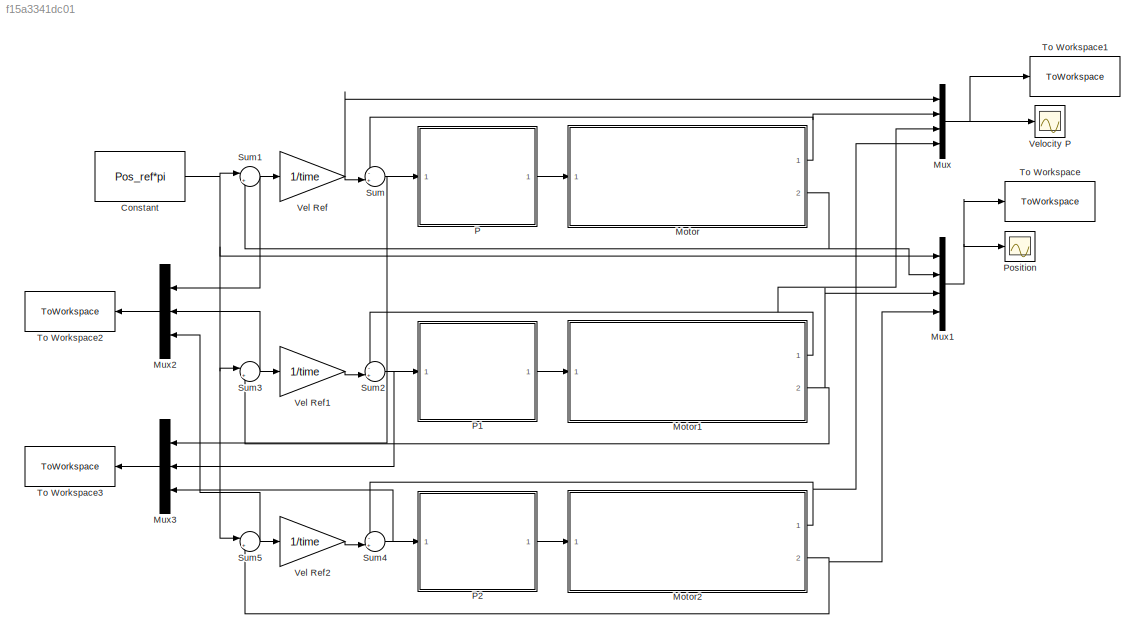
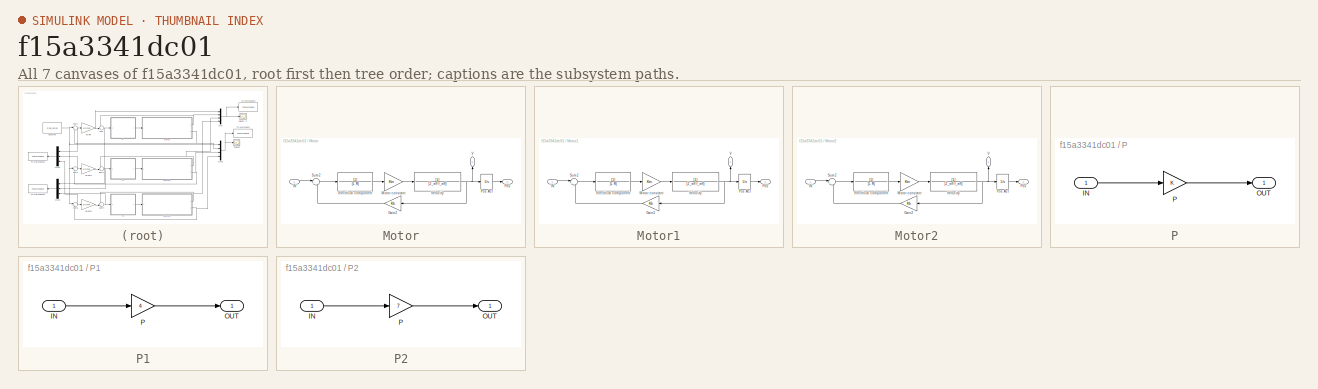
[diagram: thumbnail index - all 7 canvases of the model, root first then tree order]
MODEL slx_f15a3341dc01
KIND model
CONFIG AbsTol = auto
CONFIG EnableMultiTasking = off
CONFIG FixedStep = auto
CONFIG MaxStep = auto
CONFIG MinStep = auto
CONFIG RelTol = 1e-3
CONFIG SampleTimeConstraint = Unconstrained
CONFIG SolverName = VariableStepAuto
CONFIG StartTime = 0.0
CONFIG StopTime = 500
BLOCK [Constant] Constant
  Value = Pos_ref*pi
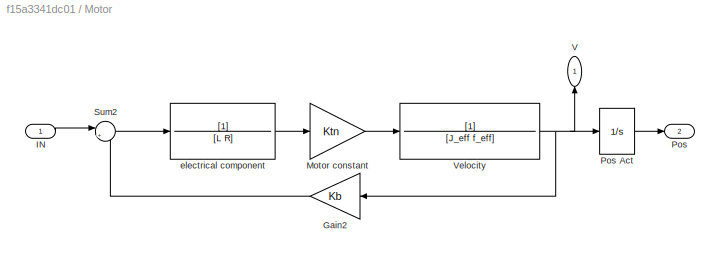
BLOCK [SubSystem] Motor
  Ports = [1, 2]
BLOCK [Gain] Motor/Gain2
  Gain = Kb
BLOCK [Inport] Motor/IN
  IconDisplay = Signal name
BLOCK [Gain] Motor/Motor constant
  Gain = Ktn
BLOCK [Outport] Motor/Pos
  IconDisplay = Port number and signal name
  Port = 2
BLOCK [Integrator] Motor/Pos Act
  Ports = [1, 1]
BLOCK [Sum] Motor/Sum2
  Inputs = |+-
  Ports = [2, 1]
BLOCK [Outport] Motor/V
  IconDisplay = Port number and signal name
  NameLocation = right
BLOCK [TransferFcn] Motor/Velocity
  Denominator = [J_eff f_eff]
BLOCK [TransferFcn] Motor/electrical component
  Denominator = [L R]
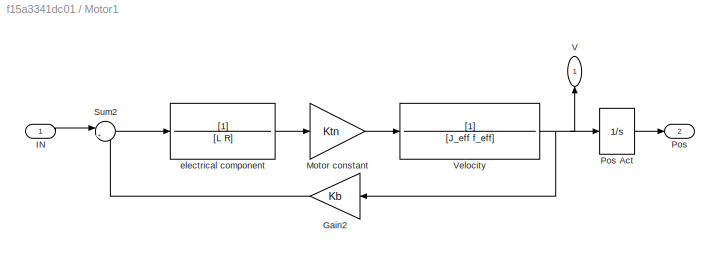
BLOCK [SubSystem] Motor1
  Ports = [1, 2]
BLOCK [Gain] Motor1/Gain2
  Gain = Kb
BLOCK [Inport] Motor1/IN
  IconDisplay = Signal name
BLOCK [Gain] Motor1/Motor constant
  Gain = Ktn
BLOCK [Outport] Motor1/Pos
  IconDisplay = Port number and signal name
  Port = 2
BLOCK [Integrator] Motor1/Pos Act
  Ports = [1, 1]
BLOCK [Sum] Motor1/Sum2
  Inputs = |+-
  Ports = [2, 1]
BLOCK [Outport] Motor1/V
  IconDisplay = Port number and signal name
  NameLocation = right
BLOCK [TransferFcn] Motor1/Velocity
  Denominator = [J_eff f_eff]
BLOCK [TransferFcn] Motor1/electrical component
  Denominator = [L R]
BLOCK [SubSystem] Motor2
  Ports = [1, 2]
BLOCK [Gain] Motor2/Gain2
  Gain = Kb
BLOCK [Inport] Motor2/IN
  IconDisplay = Signal name
BLOCK [Gain] Motor2/Motor constant
  Gain = Ktn
BLOCK [Outport] Motor2/Pos
  IconDisplay = Port number and signal name
  Port = 2
BLOCK [Integrator] Motor2/Pos Act
  Ports = [1, 1]
BLOCK [Sum] Motor2/Sum2
  Inputs = |+-
  Ports = [2, 1]
BLOCK [Outport] Motor2/V
  IconDisplay = Port number and signal name
  NameLocation = right
BLOCK [TransferFcn] Motor2/Velocity
  Denominator = [J_eff f_eff]
BLOCK [TransferFcn] Motor2/electrical component
  Denominator = [L R]
BLOCK [Mux] Mux
  DisplayOption = bar
  Ports = [4, 1]
BLOCK [Mux] Mux1
  DisplayOption = bar
  Ports = [4, 1]
BLOCK [Mux] Mux2
  DisplayOption = bar
  Inputs = 3
  Ports = [3, 1]
BLOCK [Mux] Mux3
  DisplayOption = bar
  Inputs = 3
  Ports = [3, 1]
BLOCK [SubSystem] P
  Ports = [1, 1]
BLOCK [Inport] P/IN
  IconDisplay = Signal name
BLOCK [Outport] P/OUT
  IconDisplay = Signal name
BLOCK [Gain] P/P
BLOCK [SubSystem] P1
  Ports = [1, 1]
BLOCK [Inport] P1/IN
  IconDisplay = Signal name
BLOCK [Outport] P1/OUT
  IconDisplay = Signal name
BLOCK [Gain] P1/P
  Gain = 4
BLOCK [SubSystem] P2
  Ports = [1, 1]
BLOCK [Inport] P2/IN
  IconDisplay = Signal name
BLOCK [Outport] P2/OUT
  IconDisplay = Signal name
BLOCK [Gain] P2/P
  Gain = 7
BLOCK [Scope] Position
  Floating = off
  NumInputPorts = 1
  Ports = [1]
  ScopeSpecificationString = Simulink.scopes.TimeScopeBlockCfg('CurrentConfiguration', extmgr.ConfigurationSet(extmgr.Configuration('Core','General UI',true),extmgr.Configuration('Core','Source UI',true),extmgr.Configuration('Sources','WiredSimulink',true,'DataLoggingVariableName','ScopeData1'),extmgr.Configuration('Visuals','Time Domain',true,'SerializedDisplays',{struct('MinYLimReal','-125.00000','MaxYLimReal','1125.00000',...<+1498ch>
BLOCK [Sum] Sum
  Inputs = -+|
  Ports = [2, 1]
BLOCK [Sum] Sum1
  Inputs = |+-
  Ports = [2, 1]
BLOCK [Sum] Sum2
  Inputs = -+|
  Ports = [2, 1]
BLOCK [Sum] Sum3
  Inputs = |+-
  Ports = [2, 1]
BLOCK [Sum] Sum4
  Inputs = -+|
  Ports = [2, 1]
BLOCK [Sum] Sum5
  Inputs = |+-
  Ports = [2, 1]
BLOCK [ToWorkspace] To Workspace
  FixptAsFi = on
  MaxDataPoints = inf
  Ports = [1]
  SampleTime = -1
  SaveFormat = Timeseries
  VariableName = Pos
BLOCK [ToWorkspace] To Workspace1
  FixptAsFi = on
  MaxDataPoints = inf
  Ports = [1]
  SampleTime = -1
  SaveFormat = Timeseries
  VariableName = vel
BLOCK [ToWorkspace] To Workspace2
  FixptAsFi = on
  MaxDataPoints = inf
  Ports = [1]
  SampleTime = -1
  SaveFormat = Timeseries
  VariableName = err_pos
BLOCK [ToWorkspace] To Workspace3
  FixptAsFi = on
  MaxDataPoints = inf
  Ports = [1]
  SampleTime = -1
  SaveFormat = Timeseries
  VariableName = err_vel
BLOCK [Gain] Vel Ref
  Gain = 1/time
BLOCK [Gain] Vel Ref1
  Gain = 1/time
BLOCK [Gain] Vel Ref2
  Gain = 1/time
BLOCK [Scope] Velocity P
  Floating = off
  NumInputPorts = 1
  Ports = [1]
  ScopeSpecificationString = Simulink.scopes.TimeScopeBlockCfg('CurrentConfiguration', extmgr.ConfigurationSet(extmgr.Configuration('Core','General UI',true),extmgr.Configuration('Core','Source UI',true),extmgr.Configuration('Sources','WiredSimulink',true),extmgr.Configuration('Visuals','Time Domain',true,'SerializedDisplays',{struct('MinYLimReal','-2.21083','MaxYLimReal','19.89751','YLabelReal','','MinYLimMag','0.00000','Max...<+1454ch>
NET Constant:1 -> Mux1:1, Sum1:1, Sum3:1, Sum5:1
LINE Motor/Gain2:1 -> Motor/Sum2:2
LINE Motor/IN:1 -> Motor/Sum2:1
LINE Motor/Motor constant:1 -> Motor/Velocity:1
LINE Motor/Pos Act:1 -> Motor/Pos:1
LINE Motor/Sum2:1 -> Motor/electrical component:1
NET Motor/Velocity:1 -> Motor/Gain2:1, Motor/Pos Act:1, Motor/V:1
LINE Motor/electrical component:1 -> Motor/Motor constant:1
LINE Motor1/Gain2:1 -> Motor1/Sum2:2
LINE Motor1/IN:1 -> Motor1/Sum2:1
LINE Motor1/Motor constant:1 -> Motor1/Velocity:1
LINE Motor1/Pos Act:1 -> Motor1/Pos:1
LINE Motor1/Sum2:1 -> Motor1/electrical component:1
NET Motor1/Velocity:1 -> Motor1/Gain2:1, Motor1/Pos Act:1, Motor1/V:1
LINE Motor1/electrical component:1 -> Motor1/Motor constant:1
NET Motor1:1 -> Mux:3, Sum2:1
NET Motor1:2 -> Mux1:3, Sum3:2
LINE Motor2/Gain2:1 -> Motor2/Sum2:2
LINE Motor2/IN:1 -> Motor2/Sum2:1
LINE Motor2/Motor constant:1 -> Motor2/Velocity:1
LINE Motor2/Pos Act:1 -> Motor2/Pos:1
LINE Motor2/Sum2:1 -> Motor2/electrical component:1
NET Motor2/Velocity:1 -> Motor2/Gain2:1, Motor2/Pos Act:1, Motor2/V:1
LINE Motor2/electrical component:1 -> Motor2/Motor constant:1
NET Motor2:1 -> Mux:4, Sum4:1
NET Motor2:2 -> Mux1:4, Sum5:2
NET Motor:1 -> Mux:2, Sum:1
NET Motor:2 -> Mux1:2, Sum1:2
NET Mux1:1 -> Position:1, To Workspace:1
LINE Mux2:1 -> To Workspace2:1
LINE Mux3:1 -> To Workspace3:1
NET Mux:1 -> To Workspace1:1, Velocity P:1
LINE P/IN:1 -> P/P:1
LINE P/P:1 -> P/OUT:1
LINE P1/IN:1 -> P1/P:1
LINE P1/P:1 -> P1/OUT:1
LINE P1:1 -> Motor1:1
LINE P2/IN:1 -> P2/P:1
LINE P2/P:1 -> P2/OUT:1
LINE P2:1 -> Motor2:1
LINE P:1 -> Motor:1
NET Sum1:1 -> Mux2:1, Vel Ref:1
NET Sum2:1 -> Mux3:2, P1:1
NET Sum3:1 -> Mux2:2, Vel Ref1:1
NET Sum4:1 -> Mux3:3, P2:1
NET Sum5:1 -> Mux2:3, Vel Ref2:1
NET Sum:1 -> Mux3:1, P:1
LINE Vel Ref1:1 -> Sum2:2
LINE Vel Ref2:1 -> Sum4:2
NET Vel Ref:1 -> Mux:1, Sum:2
note: NET lines group one-source signal fan-out (src -> all destinations, sorted); 1:1 wires keep LINE
